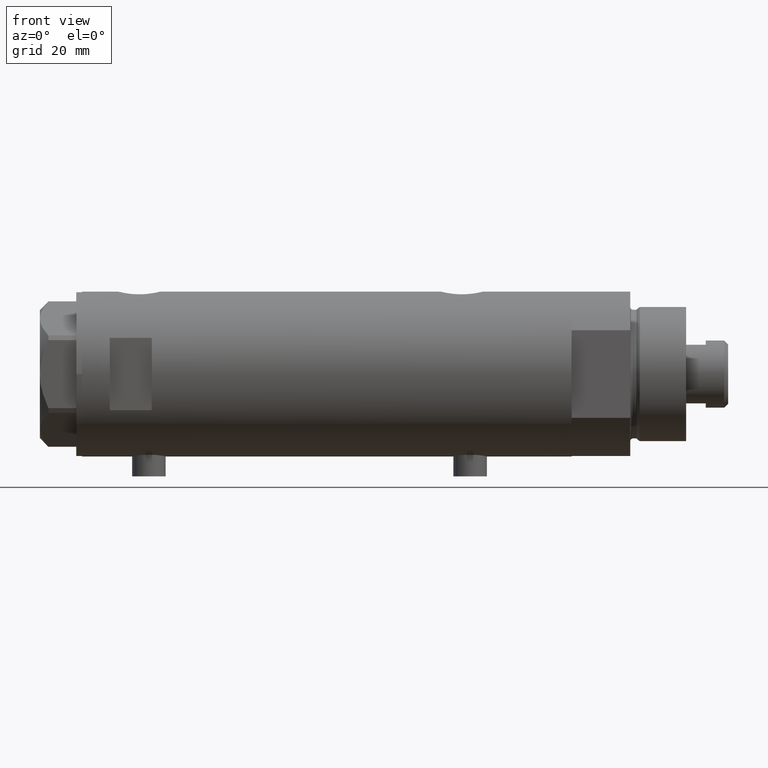
[diagram: clean part render]
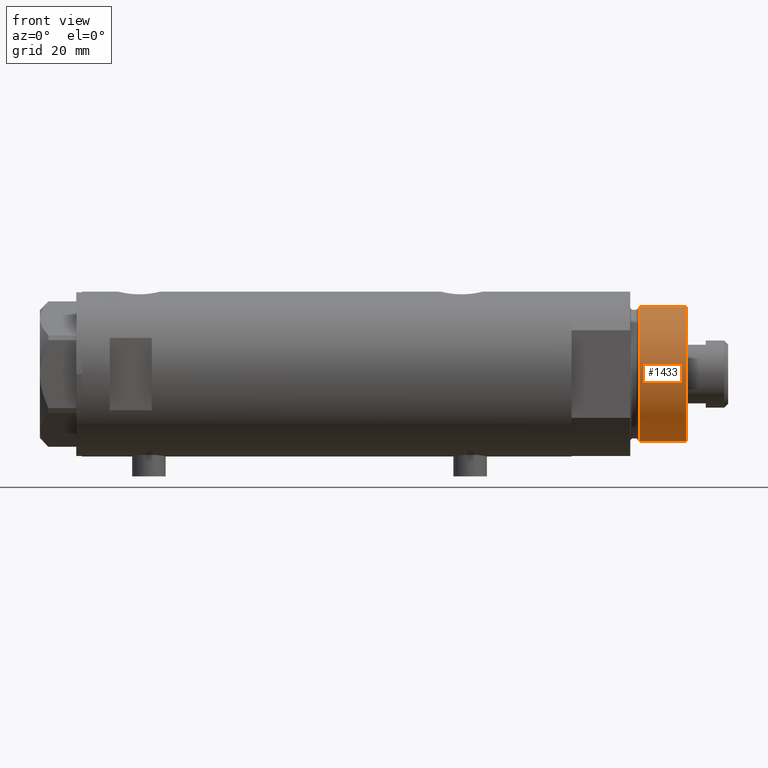
[diagram: same view with one face highlighted and labeled with its STEP entity id]
A machine part, front view. The second image highlights one B-rep face of the part: STEP entity #1433.
In plain terms, the highlighted cylindrical surface (partial cylindrical patch) has radius 24 mm, axis along (-1, -0, 0).
Its self-contained STEP definition (entity closure, byte-faithful):
#100 = CYLINDRICAL_SURFACE ( 'NONE', #3150, 24.00000000000000355 ) ;
#134 = AXIS2_PLACEMENT_3D ( 'NONE', #3861, #3136, #1110 ) ;
#233 = CARTESIAN_POINT ( 'NONE',  ( 24.00000000000000355, 2.939152317953648289E-15, 41.00000000000000000 ) ) ;
#239 = ORIENTED_EDGE ( 'NONE', *, *, #595, .F. ) ;
#402 = FACE_OUTER_BOUND ( 'NONE', #4351, .T. ) ;
#515 = CARTESIAN_POINT ( 'NONE',  ( 0.000000000000000000, 0.000000000000000000, 24.37384048104054557 ) ) ;
#595 = EDGE_CURVE ( 'NONE', #2020, #1000, #3320, .T. ) ;
#602 = EDGE_CURVE ( 'NONE', #2717, #1000, #1508, .T. ) ;
#654 = CARTESIAN_POINT ( 'NONE',  ( -24.00000000000000355, 0.000000000000000000, 41.00000000000000000 ) ) ;
#907 = CARTESIAN_POINT ( 'NONE',  ( 24.00000000000000355, 2.939152317953648289E-15, 41.00000000000000000 ) ) ;
#1000 = VERTEX_POINT ( 'NONE', #2613 ) ;
#1012 = VECTOR ( 'NONE', #3954, 1000.000000000000000 ) ;
#1023 = ORIENTED_EDGE ( 'NONE', *, *, #602, .T. ) ;
#1110 = DIRECTION ( 'NONE',  ( 1.000000000000000000, 0.000000000000000000, 0.000000000000000000 ) ) ;
#1309 = CIRCLE ( 'NONE', #134, 24.00000000000000355 ) ;
#1433 = ADVANCED_FACE ( 'NONE', ( #402 ), #100, .T. ) ;
#1496 = CARTESIAN_POINT ( 'NONE',  ( 0.000000000000000000, 0.000000000000000000, 41.00000000000000000 ) ) ;
#1508 = CIRCLE ( 'NONE', #2941, 24.00000000000000355 ) ;
#1559 = DIRECTION ( 'NONE',  ( 1.000000000000000000, 0.000000000000000000, 0.000000000000000000 ) ) ;
#1572 = CARTESIAN_POINT ( 'NONE',  ( -24.00000000000000355, 0.000000000000000000, 24.37384048104054557 ) ) ;
#1767 = EDGE_CURVE ( 'NONE', #2280, #2717, #2215, .T. ) ;
#1791 = DIRECTION ( 'NONE',  ( -0.000000000000000000, -0.000000000000000000, -1.000000000000000000 ) ) ;
#2020 = VERTEX_POINT ( 'NONE', #233 ) ;
#2133 = ORIENTED_EDGE ( 'NONE', *, *, #1767, .T. ) ;
#2215 = LINE ( 'NONE', #2849, #1012 ) ;
#2280 = VERTEX_POINT ( 'NONE', #654 ) ;
#2364 = VECTOR ( 'NONE', #3971, 1000.000000000000000 ) ;
#2613 = CARTESIAN_POINT ( 'NONE',  ( 24.00000000000000355, 2.939152317953648289E-15, 24.37384048104054557 ) ) ;
#2717 = VERTEX_POINT ( 'NONE', #1572 ) ;
#2849 = CARTESIAN_POINT ( 'NONE',  ( -24.00000000000000355, 0.000000000000000000, 41.00000000000000000 ) ) ;
#2941 = AXIS2_PLACEMENT_3D ( 'NONE', #515, #3292, #1559 ) ;
#3136 = DIRECTION ( 'NONE',  ( 0.000000000000000000, 0.000000000000000000, 1.000000000000000000 ) ) ;
#3150 = AXIS2_PLACEMENT_3D ( 'NONE', #1496, #1791, #3156 ) ;
#3156 = DIRECTION ( 'NONE',  ( -1.000000000000000000, 0.000000000000000000, 0.000000000000000000 ) ) ;
#3292 = DIRECTION ( 'NONE',  ( -0.000000000000000000, -0.000000000000000000, 1.000000000000000000 ) ) ;
#3320 = LINE ( 'NONE', #907, #2364 ) ;
#3360 = ORIENTED_EDGE ( 'NONE', *, *, #3986, .F. ) ;
#3861 = CARTESIAN_POINT ( 'NONE',  ( 0.000000000000000000, 0.000000000000000000, 41.00000000000000000 ) ) ;
#3954 = DIRECTION ( 'NONE',  ( -0.000000000000000000, -0.000000000000000000, -1.000000000000000000 ) ) ;
#3971 = DIRECTION ( 'NONE',  ( -0.000000000000000000, -0.000000000000000000, -1.000000000000000000 ) ) ;
#3986 = EDGE_CURVE ( 'NONE', #2280, #2020, #1309, .T. ) ;
#4351 = EDGE_LOOP ( 'NONE', ( #239, #3360, #2133, #1023 ) ) ;